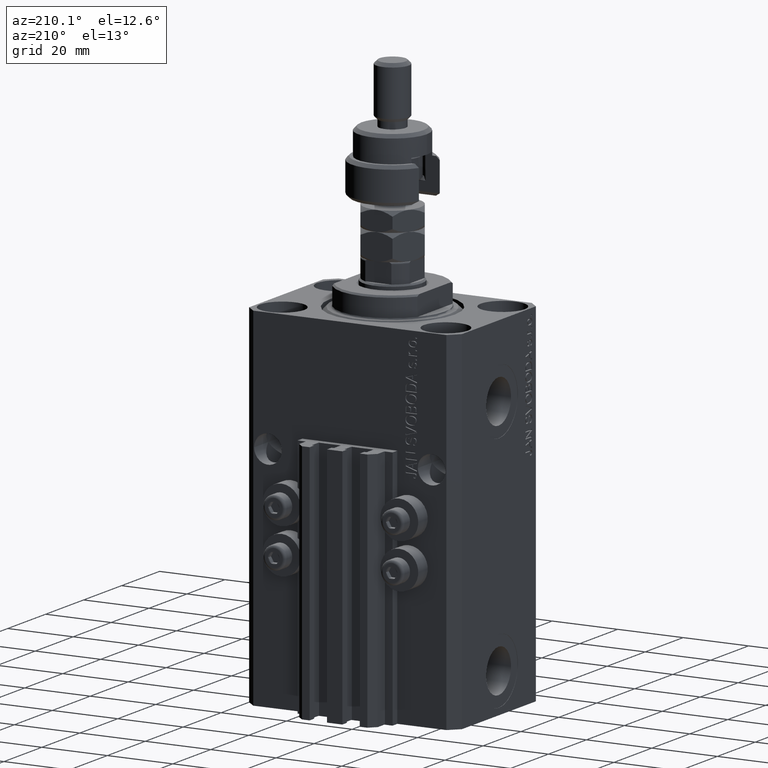
[diagram: clean part render]
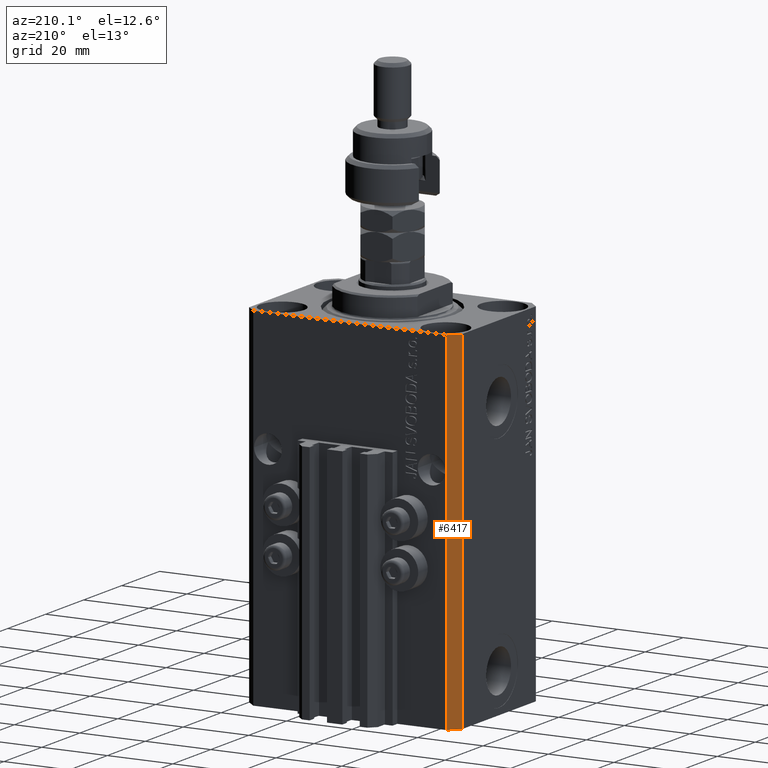
[diagram: same view with one face highlighted and labeled with its STEP entity id]
A machine part, auxiliary view. The second image highlights one B-rep face of the part: STEP entity #6417.
In plain terms, the highlighted planar face has unit normal (-0.7071, 0.7071, 0).
Its self-contained STEP definition (entity closure, byte-faithful):
#1544 = DIRECTION ( 'NONE',  ( -0.7071067811865474617, -0.7071067811865474617, 0.000000000000000000 ) ) ;
#3889 = PLANE ( 'NONE',  #43693 ) ;
#6417 = ADVANCED_FACE ( 'NONE', ( #19296 ), #3889, .T. ) ;
#6886 = VERTEX_POINT ( 'NONE', #28078 ) ;
#7173 = CARTESIAN_POINT ( 'NONE',  ( -29.49999999999650413, 22.49999999999949907, 0.000000000000000000 ) ) ;
#7282 = VERTEX_POINT ( 'NONE', #42996 ) ;
#7802 = VECTOR ( 'NONE', #33233, 1000.000000000000000 ) ;
#9102 = VECTOR ( 'NONE', #1544, 1000.000000000000114 ) ;
#11711 = VERTEX_POINT ( 'NONE', #12420 ) ;
#12420 = CARTESIAN_POINT ( 'NONE',  ( -32.49999999999650413, 19.49999999999949907, 0.000000000000000000 ) ) ;
#13641 = VECTOR ( 'NONE', #22827, 1000.000000000000114 ) ;
#14514 = DIRECTION ( 'NONE',  ( -0.7071067811865474617, -0.7071067811865474617, 0.000000000000000000 ) ) ;
#15007 = LINE ( 'NONE', #7173, #13641 ) ;
#16060 = VERTEX_POINT ( 'NONE', #38704 ) ;
#16348 = ORIENTED_EDGE ( 'NONE', *, *, #37333, .T. ) ;
#18705 = EDGE_CURVE ( 'NONE', #7282, #11711, #24659, .T. ) ;
#19296 = FACE_OUTER_BOUND ( 'NONE', #44740, .T. ) ;
#21386 = ORIENTED_EDGE ( 'NONE', *, *, #25863, .F. ) ;
#22827 = DIRECTION ( 'NONE',  ( -0.7071067811865474617, -0.7071067811865474617, 0.000000000000000000 ) ) ;
#24212 = ORIENTED_EDGE ( 'NONE', *, *, #34659, .F. ) ;
#24659 = LINE ( 'NONE', #33259, #30934 ) ;
#25863 = EDGE_CURVE ( 'NONE', #16060, #6886, #48398, .T. ) ;
#28078 = CARTESIAN_POINT ( 'NONE',  ( -29.49999999999650413, 22.49999999999949907, 0.000000000000000000 ) ) ;
#28091 = CARTESIAN_POINT ( 'NONE',  ( -29.49999999999650413, 22.49999999999949907, -107.0000000000000000 ) ) ;
#30182 = DIRECTION ( 'NONE',  ( -0.7071067811865475727, 0.7071067811865475727, 0.000000000000000000 ) ) ;
#30934 = VECTOR ( 'NONE', #44135, 1000.000000000000000 ) ;
#32035 = ORIENTED_EDGE ( 'NONE', *, *, #18705, .T. ) ;
#32634 = LINE ( 'NONE', #28091, #9102 ) ;
#33233 = DIRECTION ( 'NONE',  ( 0.000000000000000000, 0.000000000000000000, 1.000000000000000000 ) ) ;
#33259 = CARTESIAN_POINT ( 'NONE',  ( -32.49999999999650413, 19.49999999999949907, -107.0000000000000000 ) ) ;
#34659 = EDGE_CURVE ( 'NONE', #6886, #11711, #15007, .T. ) ;
#37333 = EDGE_CURVE ( 'NONE', #16060, #7282, #32634, .T. ) ;
#38704 = CARTESIAN_POINT ( 'NONE',  ( -29.49999999999650413, 22.49999999999949907, -107.0000000000000000 ) ) ;
#42996 = CARTESIAN_POINT ( 'NONE',  ( -32.49999999999650413, 19.49999999999949907, -107.0000000000000000 ) ) ;
#43693 = AXIS2_PLACEMENT_3D ( 'NONE', #49138, #30182, #14514 ) ;
#44135 = DIRECTION ( 'NONE',  ( 0.000000000000000000, 0.000000000000000000, 1.000000000000000000 ) ) ;
#44740 = EDGE_LOOP ( 'NONE', ( #24212, #21386, #16348, #32035 ) ) ;
#48398 = LINE ( 'NONE', #48645, #7802 ) ;
#48645 = CARTESIAN_POINT ( 'NONE',  ( -29.49999999999650413, 22.49999999999949907, -107.0000000000000000 ) ) ;
#49138 = CARTESIAN_POINT ( 'NONE',  ( -29.49999999999650413, 22.49999999999949907, -107.0000000000000000 ) ) ;